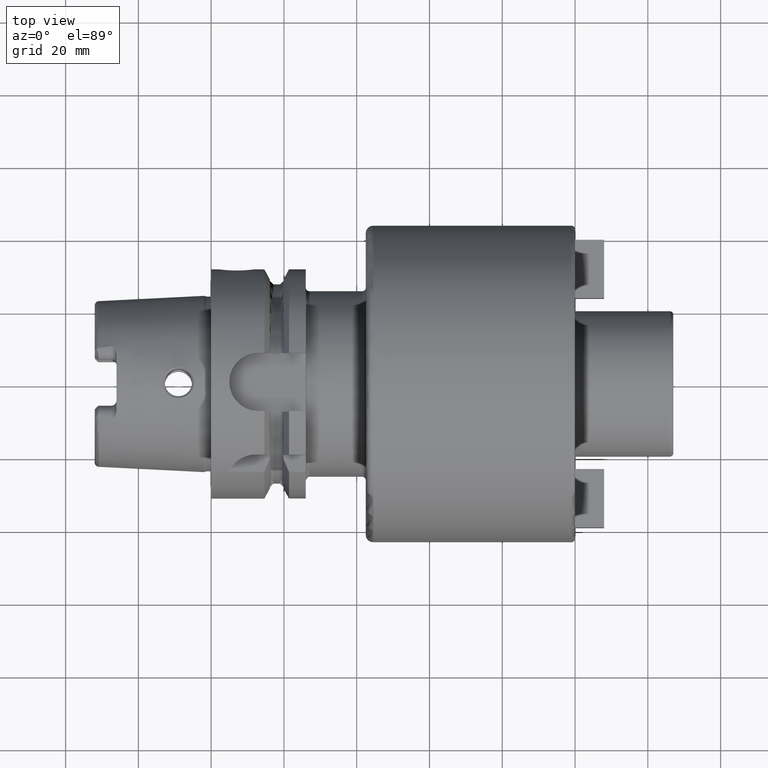
[diagram: clean part render]
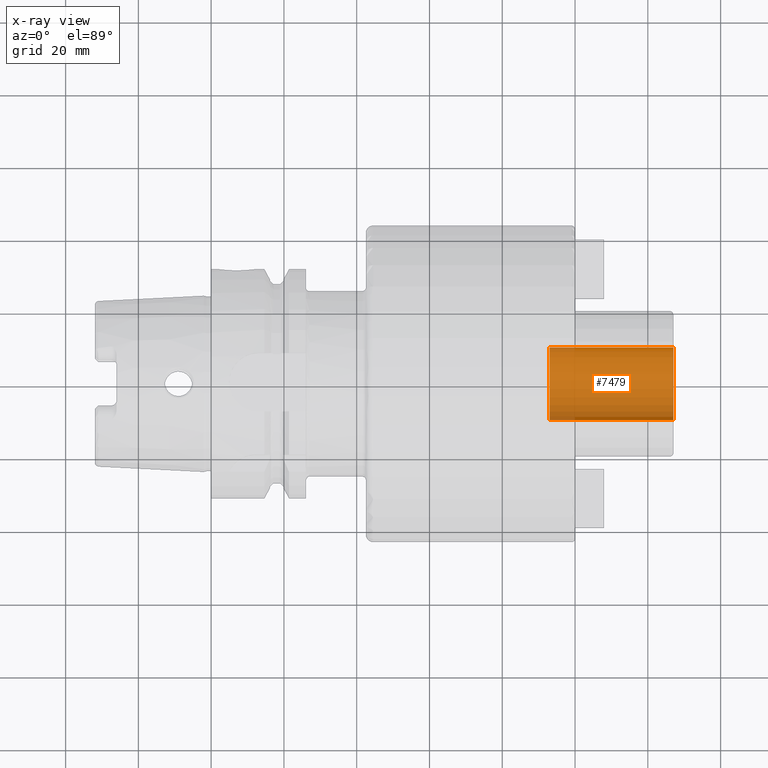
[diagram: x-ray — body ghosted, one internal face saturated and labeled with its STEP entity id]
A machine part, top view, then the same camera in x-ray: the body is ghosted and one INTERNAL B-rep face — a face not visible from any outside direction — is saturated and labeled: STEP entity #7479.
In plain terms, the highlighted cylindrical surface (edge-blend (fillet) strip) has radius 10 mm, axis along (1, 0, 0).
Its self-contained STEP definition (entity closure, byte-faithful):
#7414=CARTESIAN_POINT('',(1.27E2,0.E0,0.E0));
#7415=DIRECTION('',(-1.E0,0.E0,0.E0));
#7416=DIRECTION('',(0.E0,1.E0,0.E0));
#7417=AXIS2_PLACEMENT_3D('',#7414,#7415,#7416);
#7424=DIRECTION('',(-1.E0,0.E0,0.E0));
#7425=VECTOR('',#7424,3.4E1);
#7426=CARTESIAN_POINT('',(1.27E2,1.E1,0.E0));
#7427=LINE('',#7426,#7425);
#7428=DIRECTION('',(-1.E0,0.E0,0.E0));
#7429=VECTOR('',#7428,3.4E1);
#7430=CARTESIAN_POINT('',(1.27E2,-1.E1,0.E0));
#7431=LINE('',#7430,#7429);
#7432=CARTESIAN_POINT('',(9.3E1,0.E0,0.E0));
#7433=DIRECTION('',(1.E0,0.E0,0.E0));
#7434=DIRECTION('',(0.E0,-1.E0,0.E0));
#7435=AXIS2_PLACEMENT_3D('',#7432,#7433,#7434);
#7452=CARTESIAN_POINT('',(9.3E1,-1.E1,0.E0));
#7453=CARTESIAN_POINT('',(9.3E1,1.E1,0.E0));
#7454=VERTEX_POINT('',#7452);
#7455=VERTEX_POINT('',#7453);
#7456=CARTESIAN_POINT('',(1.27E2,-1.E1,0.E0));
#7457=CARTESIAN_POINT('',(1.27E2,1.E1,0.E0));
#7458=VERTEX_POINT('',#7456);
#7459=VERTEX_POINT('',#7457);
#7464=CARTESIAN_POINT('',(7.422959306268E1,0.E0,0.E0));
#7465=DIRECTION('',(1.E0,0.E0,0.E0));
#7466=DIRECTION('',(0.E0,-1.E0,0.E0));
#7467=AXIS2_PLACEMENT_3D('',#7464,#7465,#7466);
#7468=CYLINDRICAL_SURFACE('',#7467,1.E1);
#7470=ORIENTED_EDGE('',*,*,#7469,.T.);
#7472=ORIENTED_EDGE('',*,*,#7471,.T.);
#7474=ORIENTED_EDGE('',*,*,#7473,.T.);
#7476=ORIENTED_EDGE('',*,*,#7475,.F.);
#7477=EDGE_LOOP('',(#7470,#7472,#7474,#7476));
#7478=FACE_OUTER_BOUND('',#7477,.F.);
#7479=ADVANCED_FACE('',(#7478),#7468,.F.);
#7418=CIRCLE('',#7417,1.E1);
#7436=CIRCLE('',#7435,1.E1);
#7469=EDGE_CURVE('',#7459,#7458,#7418,.T.);
#7471=EDGE_CURVE('',#7458,#7454,#7431,.T.);
#7473=EDGE_CURVE('',#7454,#7455,#7436,.T.);
#7475=EDGE_CURVE('',#7459,#7455,#7427,.T.);